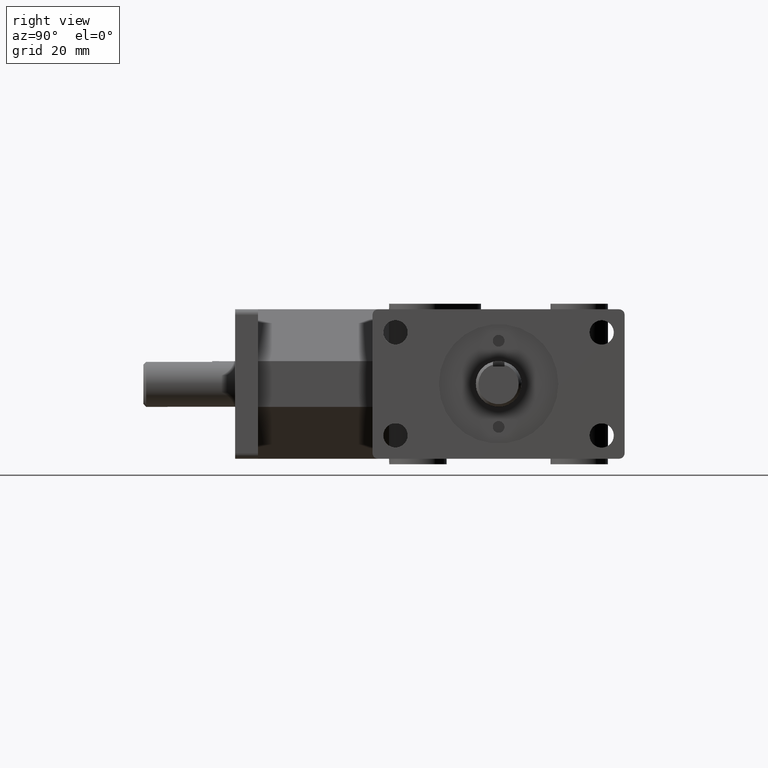
[diagram: clean part render]
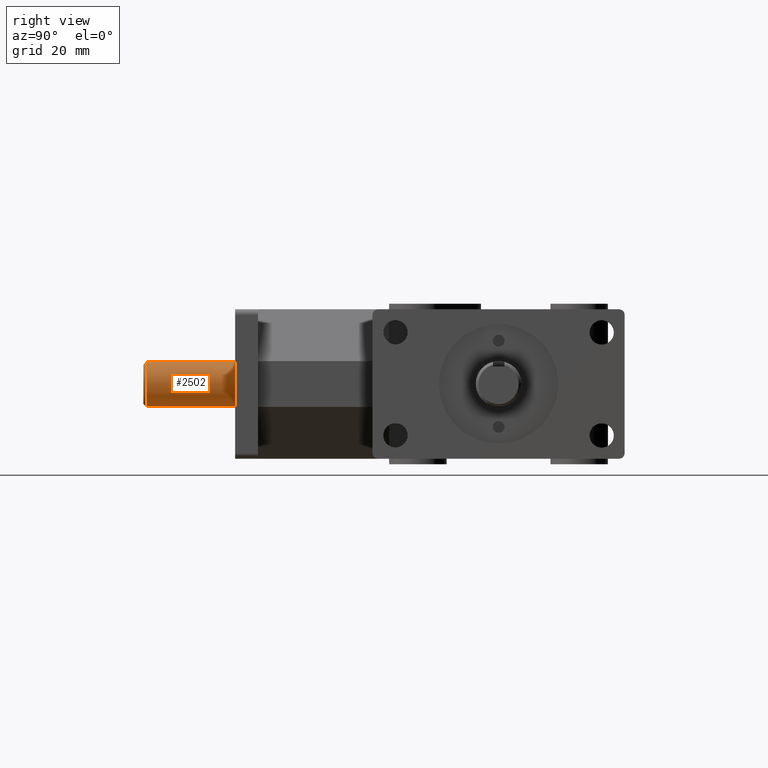
[diagram: same view with one face highlighted and labeled with its STEP entity id]
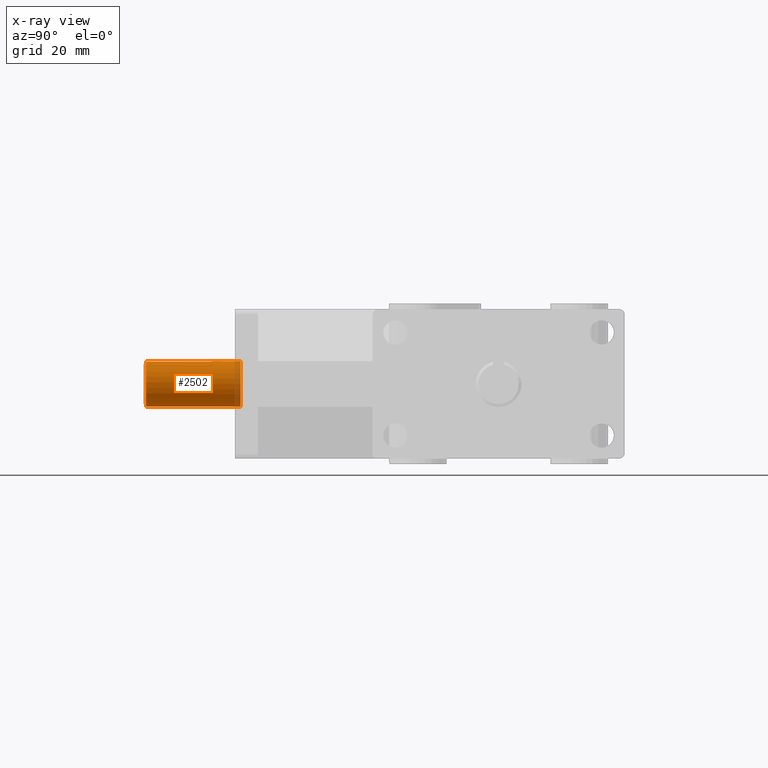
[diagram: x-ray of the same camera — body ghosted, the highlighted face saturated]
A machine part, right view. The second image highlights one B-rep face of the part: STEP entity #2502.
The next image is the same camera in x-ray: the body ghosted, the highlighted face saturated — about 6% of this face is hidden behind the body in this view.
In plain terms, the highlighted cylindrical surface (bore or boss wall) has radius 6.35 mm, axis along (0, -1, 0).
Its self-contained STEP definition (entity closure, byte-faithful):
#108=CYLINDRICAL_SURFACE('',#2764,0.25);
#141=CIRCLE('',#2600,0.25);
#213=CIRCLE('',#2763,0.25);
#214=CIRCLE('',#2765,0.25);
#215=CIRCLE('',#2766,0.25);
#344=FACE_OUTER_BOUND('',#521,.T.);
#521=EDGE_LOOP('',(#2239,#2240,#2241,#2242,#2243,#2244,#2245,#2246));
#757=LINE('',#4196,#985);
#764=LINE('',#4215,#992);
#767=LINE('',#4227,#995);
#985=VECTOR('',#3461,1.);
#992=VECTOR('',#3472,1.);
#995=VECTOR('',#3483,0.25);
#1121=VERTEX_POINT('',#3817);
#1221=VERTEX_POINT('',#4194);
#1222=VERTEX_POINT('',#4195);
#1228=VERTEX_POINT('',#4213);
#1229=VERTEX_POINT('',#4214);
#1231=VERTEX_POINT('',#4225);
#1381=EDGE_CURVE('',#1121,#1121,#141,.T.);
#1562=EDGE_CURVE('',#1221,#1222,#757,.T.);
#1570=EDGE_CURVE('',#1228,#1229,#764,.T.);
#1574=EDGE_CURVE('',#1229,#1221,#213,.T.);
#1575=EDGE_CURVE('',#1231,#1222,#214,.T.);
#1576=EDGE_CURVE('',#1231,#1121,#767,.T.);
#1577=EDGE_CURVE('',#1228,#1231,#215,.T.);
#2239=ORIENTED_EDGE('',*,*,#1562,.T.);
#2240=ORIENTED_EDGE('',*,*,#1575,.F.);
#2241=ORIENTED_EDGE('',*,*,#1576,.T.);
#2242=ORIENTED_EDGE('',*,*,#1381,.F.);
#2243=ORIENTED_EDGE('',*,*,#1576,.F.);
#2244=ORIENTED_EDGE('',*,*,#1577,.F.);
#2245=ORIENTED_EDGE('',*,*,#1570,.T.);
#2246=ORIENTED_EDGE('',*,*,#1574,.T.);
#2502=ADVANCED_FACE('',(#344),#108,.T.);
#2600=AXIS2_PLACEMENT_3D('',#3818,#3036,#3037);
#2763=AXIS2_PLACEMENT_3D('',#4223,#3477,#3478);
#2764=AXIS2_PLACEMENT_3D('',#4224,#3479,#3480);
#2765=AXIS2_PLACEMENT_3D('',#4226,#3481,#3482);
#2766=AXIS2_PLACEMENT_3D('',#4228,#3484,#3485);
#3036=DIRECTION('center_axis',(0.,1.,0.));
#3037=DIRECTION('ref_axis',(1.,0.,0.));
#3461=DIRECTION('',(0.,-1.,0.));
#3472=DIRECTION('',(0.,1.,0.));
#3477=DIRECTION('center_axis',(0.,1.,0.));
#3478=DIRECTION('ref_axis',(1.,0.,0.));
#3479=DIRECTION('center_axis',(0.,-1.,0.));
#3480=DIRECTION('ref_axis',(1.,0.,0.));
#3481=DIRECTION('center_axis',(0.,-1.,0.));
#3482=DIRECTION('ref_axis',(-1.,0.,0.));
#3483=DIRECTION('',(0.,1.,0.));
#3484=DIRECTION('center_axis',(0.,-1.,0.));
#3485=DIRECTION('ref_axis',(-1.,0.,0.));
#3817=CARTESIAN_POINT('',(-0.25,0.0600000000000002,-3.06161699786838E-17));
#3818=CARTESIAN_POINT('Origin',(0.,0.0600000000000002,0.));
#4194=CARTESIAN_POINT('',(0.0625,-0.25,0.242061459137964));
#4195=CARTESIAN_POINT('',(0.0625,-0.97,0.242061459137964));
#4196=CARTESIAN_POINT('',(0.0625,0.,0.242061459137964));
#4213=CARTESIAN_POINT('',(-0.0625,-0.97,0.242061459137964));
#4214=CARTESIAN_POINT('',(-0.0625,-0.25,0.242061459137964));
#4215=CARTESIAN_POINT('',(-0.0625,0.,0.242061459137964));
#4223=CARTESIAN_POINT('Origin',(0.,-0.25,0.));
#4224=CARTESIAN_POINT('Origin',(0.,0.,0.));
#4225=CARTESIAN_POINT('',(-0.25,-0.97,-3.06161699786838E-17));
#4226=CARTESIAN_POINT('Origin',(0.,-0.97,0.));
#4227=CARTESIAN_POINT('',(-0.25,0.,-3.06161699786838E-17));
#4228=CARTESIAN_POINT('Origin',(0.,-0.97,0.));